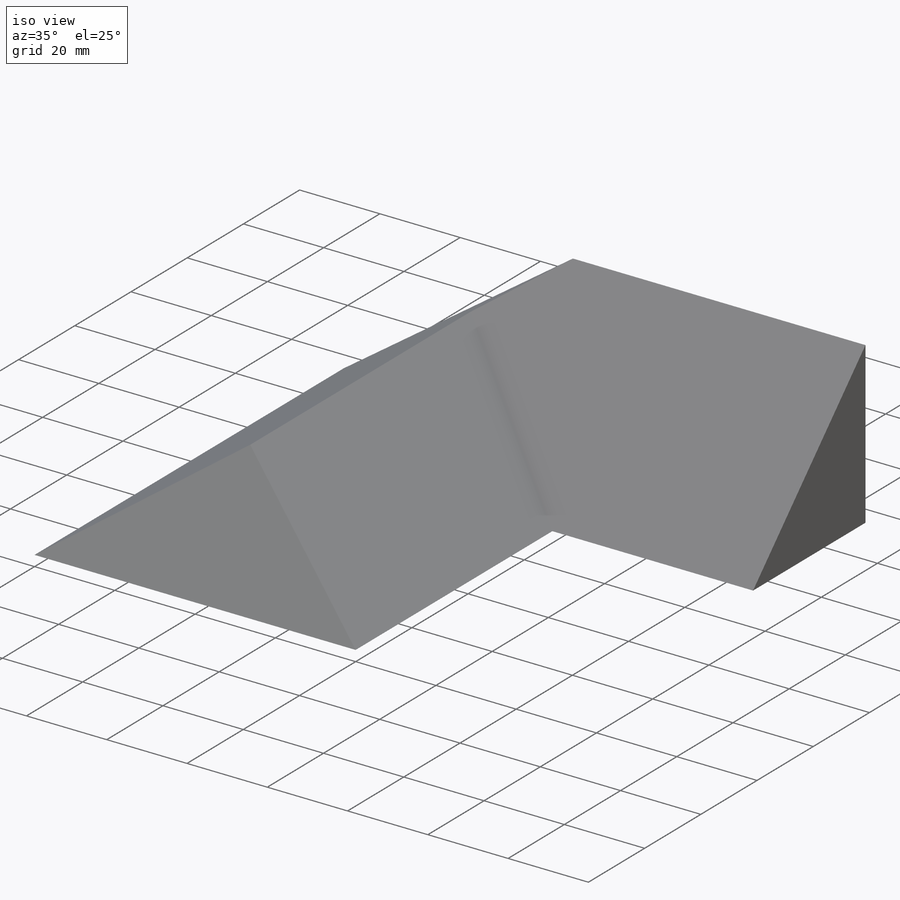
[diagram: iso view]
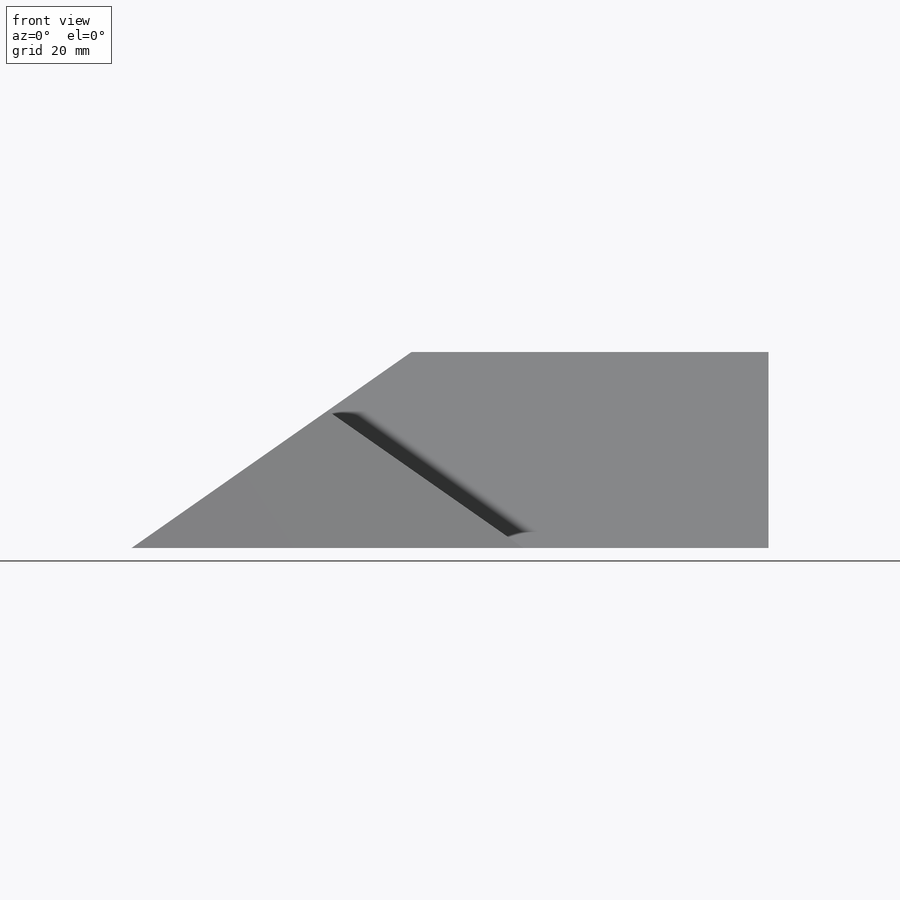
[diagram: front view]
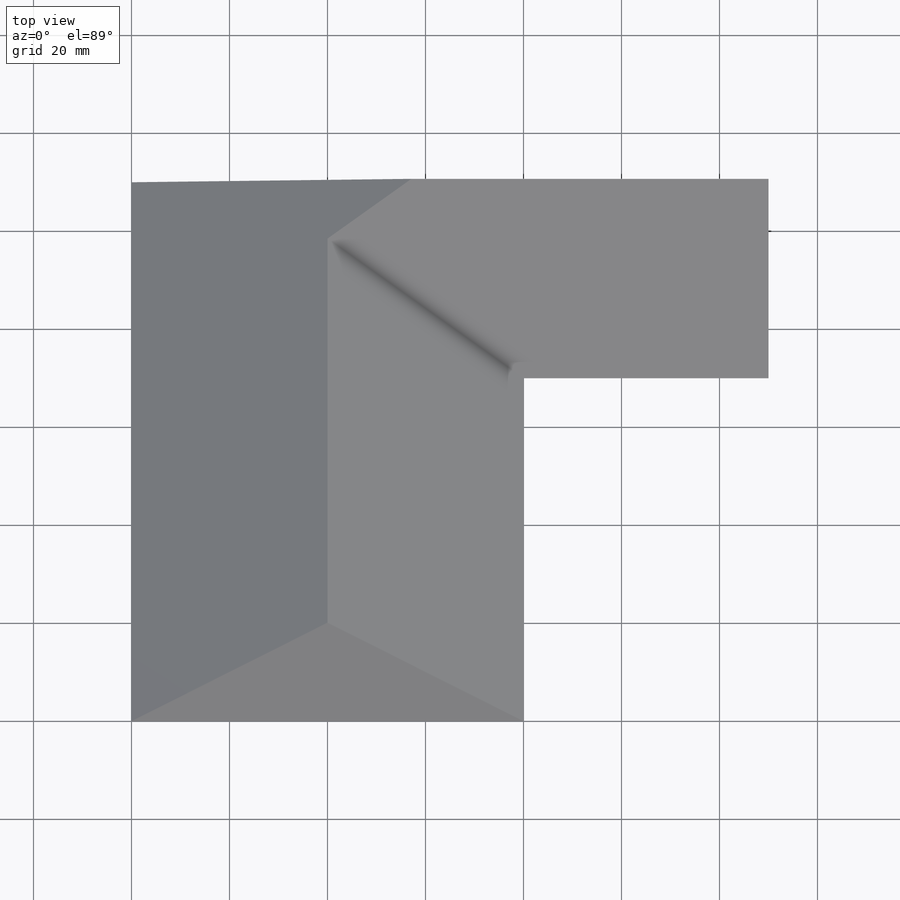
[diagram: top view]
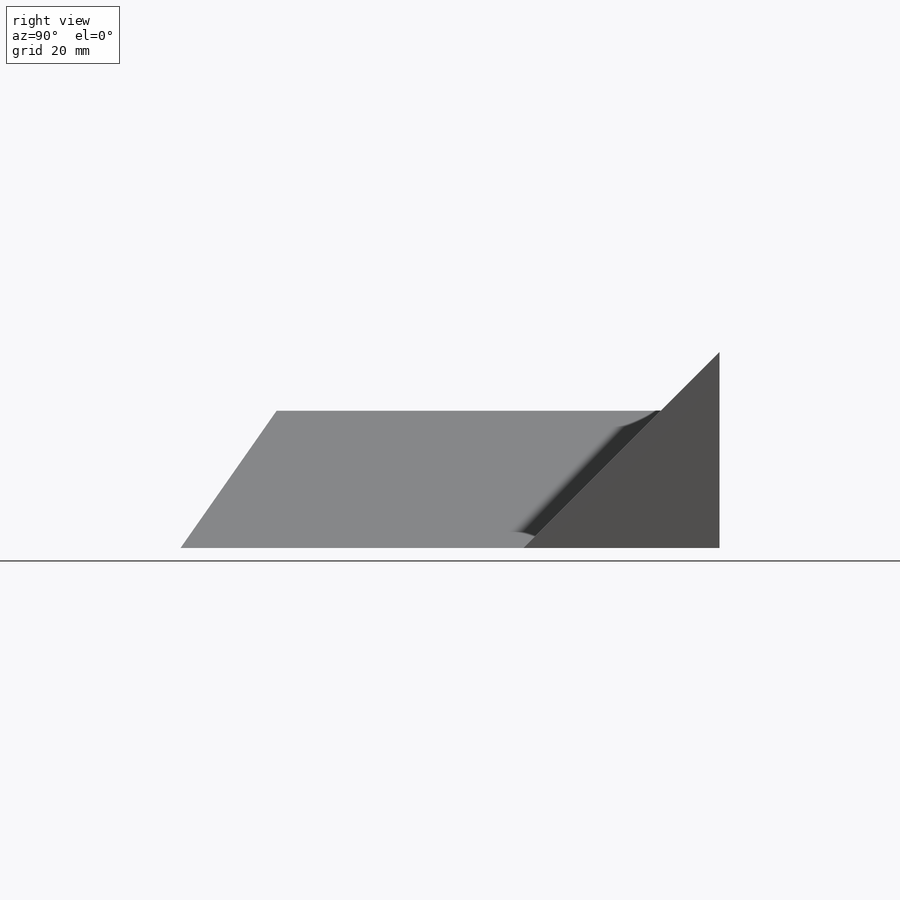
[diagram: right view]
SOLIDWORKS PART (.sldprt)
format: sldprt  version: not decoded by parser v0  size: 223,744 bytes
history: native  units: mm
features: sketch x4, extrude x2, cut_extrude x2, plane x2, material x1 (+14 scaffold rows collapsed)
feature tree (25):
  scaffold x14  (default folders/planes/origin — collapsed)
  material  "Material <not specified>"
  sketch  "Sketch1"  dims[c1.D1=80.0mm c1.D2=~56.568542mm c2.D2=45.0deg c3.D2=~56.568542mm c4.D2=35.0deg]
  extrude  "Extrude1"  Depth=110mm
  sketch  "Sketch2"  dims[c1.D1=~47.696803mm c2.D1=55.0deg]
  cut_extrude  "Cut-Extrude1"  [1 undecoded]
  plane  "Plane1"  Offset=130mm
  sketch  "Sketch3"  dims[c1.D1=40.0mm c1.D2=~53.843227mm c2.D2=45.0deg]
  extrude  "Extrude2"  Depth=90mm
  sketch  "Sketch4"
  cut_extrude  "Cut-Extrude2"  Depth=10mm
  plane  "AC Dihedral Angle Plane"
decode coverage: 6 of 8 modeling features carry decoded parameters
note: ~ marks probable driven/reference dimensions
note: 1 parameter value undecoded
note: suppression state not decoded; provenance and decode notes live in map.json
